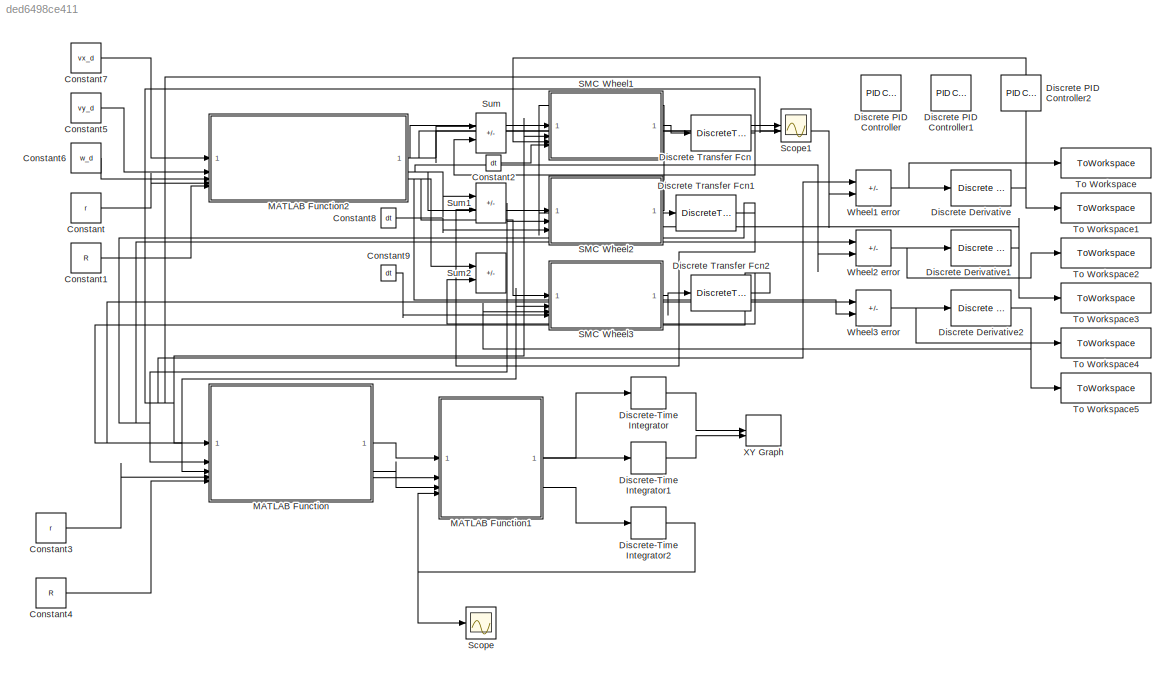
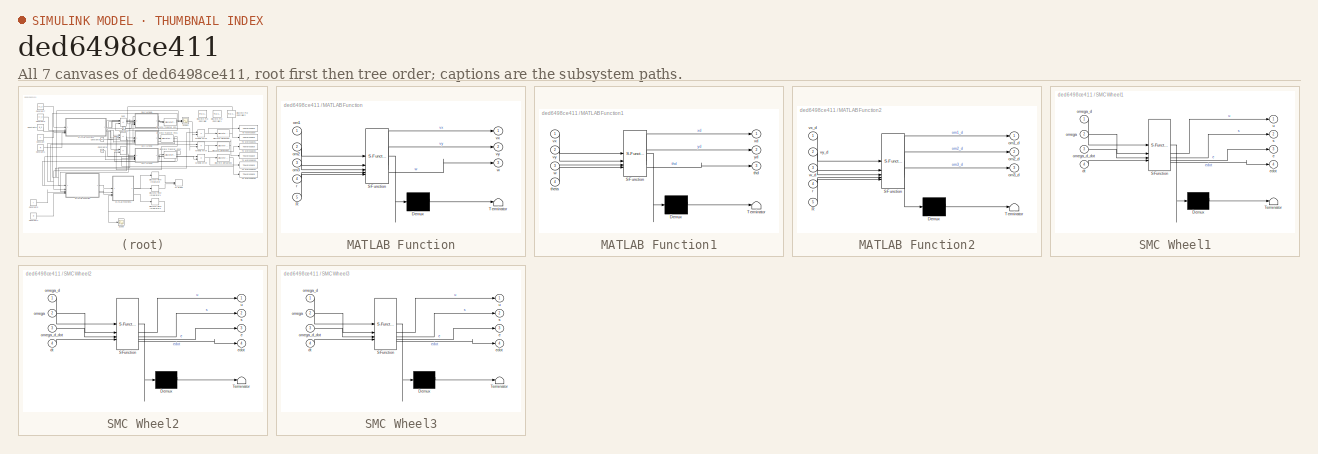
[diagram: thumbnail index - all 7 canvases of the model, root first then tree order]
MODEL slx_ded6498ce411
KIND model
CONFIG AbsTol = auto
CONFIG EnableMultiTasking = off
CONFIG FixedStep = dt
CONFIG MaxStep = auto
CONFIG MinStep = auto
CONFIG PreLoadFcn = run('params.m');\n
CONFIG RelTol = 1e-3
CONFIG SampleTimeConstraint = Unconstrained
CONFIG SolverName = FixedStepDiscrete
CONFIG StartTime = 0.0
CONFIG StopTime = 10
BLOCK [Constant] Constant
  Value = r
BLOCK [Constant] Constant1
  Value = R
BLOCK [Constant] Constant2
  Value = dt
BLOCK [Constant] Constant3
  Value = r
BLOCK [Constant] Constant4
  Value = R
BLOCK [Constant] Constant5
  Value = vy_d
BLOCK [Constant] Constant6
  Value = w_d
BLOCK [Constant] Constant7
  Value = vx_d
BLOCK [Constant] Constant8
  Value = dt
BLOCK [Constant] Constant9
  Value = dt
BLOCK [Reference] Discrete Derivative  REF=simulink/Discrete/Discrete Derivative
  SourceBlock = simulink/Discrete/Discrete Derivative
  SourceType = Discrete Derivative
BLOCK [Reference] Discrete Derivative1  REF=simulink/Discrete/Discrete Derivative
  SourceBlock = simulink/Discrete/Discrete Derivative
  SourceType = Discrete Derivative
BLOCK [Reference] Discrete Derivative2  REF=simulink/Discrete/Discrete Derivative
  SourceBlock = simulink/Discrete/Discrete Derivative
  SourceType = Discrete Derivative
BLOCK [Reference] Discrete PID Controller  REF=slpidlib/PID Controller
  Commented = on
  LibrarySourceBlock = simulink/Discrete/Discrete PID Controller
  SourceBlock = slpidlib/PID Controller
  SourceType = PID 1dof
BLOCK [Reference] Discrete PID Controller1  REF=slpidlib/PID Controller
  Commented = on
  LibrarySourceBlock = simulink/Discrete/Discrete PID Controller
  SourceBlock = slpidlib/PID Controller
  SourceType = PID 1dof
BLOCK [Reference] Discrete PID Controller2  REF=slpidlib/PID Controller
  Commented = on
  LibrarySourceBlock = simulink/Discrete/Discrete PID Controller
  SourceBlock = slpidlib/PID Controller
  SourceType = PID 1dof
BLOCK [DiscreteTransferFcn] Discrete Transfer Fcn
  CloseFcn = dspblkCoreblockFVToolHelper(gcbh,'close');
  CopyFcn = dspblkCoreblockFVToolHelper(gcbh,'copy');
  DeleteFcn = dspblkCoreblockFVToolHelper(gcbh,'close');
  Denominator = [ 1  -exp(-dt/tau1)     ]
  InputPortMap = u0
  LoadFcn = dspblkCoreblockFVToolHelper(gcbh,'load');
  ModelCloseFcn = dspblkCoreblockFVToolHelper(gcbh,'close');
  Numerator = [ K1*(1 - exp(-dt/tau1)) ]
  PostSaveFcn = dspblkCoreblockFVToolHelper(gcbh,'postsave');
  PreSaveFcn = dspblkCoreblockFVToolHelper(gcbh,'presave');
BLOCK [DiscreteTransferFcn] Discrete Transfer Fcn1
  CloseFcn = dspblkCoreblockFVToolHelper(gcbh,'close');
  CopyFcn = dspblkCoreblockFVToolHelper(gcbh,'copy');
  DeleteFcn = dspblkCoreblockFVToolHelper(gcbh,'close');
  Denominator = [ 1  -exp(-dt/tau2)     ]
  InputPortMap = u0
  LoadFcn = dspblkCoreblockFVToolHelper(gcbh,'load');
  ModelCloseFcn = dspblkCoreblockFVToolHelper(gcbh,'close');
  Numerator = [ K2*(1 - exp(-dt/tau2)) ]
  PostSaveFcn = dspblkCoreblockFVToolHelper(gcbh,'postsave');
  PreSaveFcn = dspblkCoreblockFVToolHelper(gcbh,'presave');
BLOCK [DiscreteTransferFcn] Discrete Transfer Fcn2
  CloseFcn = dspblkCoreblockFVToolHelper(gcbh,'close');
  CopyFcn = dspblkCoreblockFVToolHelper(gcbh,'copy');
  DeleteFcn = dspblkCoreblockFVToolHelper(gcbh,'close');
  Denominator = [ 1  -exp(-dt/tau3)     ]
  InputPortMap = u0
  LoadFcn = dspblkCoreblockFVToolHelper(gcbh,'load');
  ModelCloseFcn = dspblkCoreblockFVToolHelper(gcbh,'close');
  Numerator = [ K3*(1 - exp(-dt/tau3)) ]
  PostSaveFcn = dspblkCoreblockFVToolHelper(gcbh,'postsave');
  PreSaveFcn = dspblkCoreblockFVToolHelper(gcbh,'presave');
BLOCK [DiscreteIntegrator] Discrete-Time Integrator
  ICPrevOutput = DiscIntNeverNeededParam
  ICPrevScaledInput = DiscIntNeverNeededParam
  InitialCondition = x0
  InitialConditionSetting = Auto
  SampleTime = dt
BLOCK [DiscreteIntegrator] Discrete-Time Integrator1
  ICPrevOutput = DiscIntNeverNeededParam
  ICPrevScaledInput = DiscIntNeverNeededParam
  InitialCondition = y0
  InitialConditionSetting = Auto
  SampleTime = dt
BLOCK [DiscreteIntegrator] Discrete-Time Integrator2
  ICPrevOutput = DiscIntNeverNeededParam
  ICPrevScaledInput = DiscIntNeverNeededParam
  InitialCondition = th0
  InitialConditionSetting = Auto
  SampleTime = dt
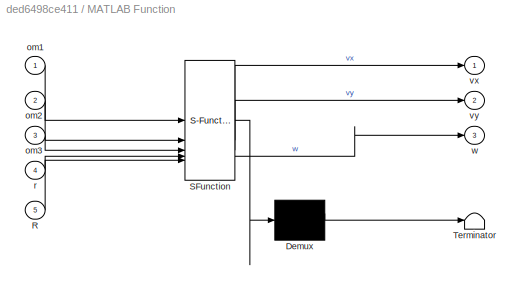
BLOCK [SubSystem] MATLAB Function
  ErrorFcn = Stateflow.Translate.translate
  PermitHierarchicalResolution = ExplicitOnly
  SFBlockType = MATLAB Function
  TreatAsAtomicUnit = on
BLOCK [Demux] MATLAB Function/ Demux 
  Outputs = 1
BLOCK [S-Function] MATLAB Function/ SFunction 
  EnableBusSupport = on
  FunctionName = sf_sfun
  PortCounts = [5 4]
  SFcnIsStateOwnerBlock = off
  SFunctionDeploymentMode = off
  Tag = Stateflow S-Function 2
BLOCK [Terminator] MATLAB Function/ Terminator 
BLOCK [Inport] MATLAB Function/R
  Port = 5
BLOCK [Inport] MATLAB Function/om1
BLOCK [Inport] MATLAB Function/om2
  Port = 2
BLOCK [Inport] MATLAB Function/om3
  Port = 3
BLOCK [Inport] MATLAB Function/r
  Port = 4
BLOCK [Outport] MATLAB Function/vx
BLOCK [Outport] MATLAB Function/vy
  Port = 2
BLOCK [Outport] MATLAB Function/w
  Port = 3
BLOCK [SubSystem] MATLAB Function1
  ErrorFcn = Stateflow.Translate.translate
  PermitHierarchicalResolution = ExplicitOnly
  SFBlockType = MATLAB Function
  TreatAsAtomicUnit = on
BLOCK [Demux] MATLAB Function1/ Demux 
  Outputs = 1
BLOCK [S-Function] MATLAB Function1/ SFunction 
  EnableBusSupport = on
  FunctionName = sf_sfun
  PortCounts = [4 4]
  SFcnIsStateOwnerBlock = off
  SFunctionDeploymentMode = off
  Tag = Stateflow S-Function 1
BLOCK [Terminator] MATLAB Function1/ Terminator 
BLOCK [Outport] MATLAB Function1/thd
  Port = 3
BLOCK [Inport] MATLAB Function1/theta
  Port = 4
BLOCK [Inport] MATLAB Function1/vx
BLOCK [Inport] MATLAB Function1/vy
  Port = 2
BLOCK [Inport] MATLAB Function1/w
  Port = 3
BLOCK [Outport] MATLAB Function1/xd
BLOCK [Outport] MATLAB Function1/yd
  Port = 2
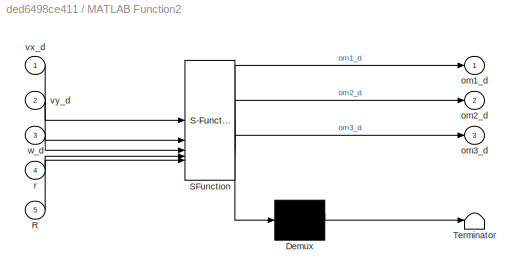
BLOCK [SubSystem] MATLAB Function2
  ErrorFcn = Stateflow.Translate.translate
  PermitHierarchicalResolution = ExplicitOnly
  SFBlockType = MATLAB Function
  TreatAsAtomicUnit = on
BLOCK [Demux] MATLAB Function2/ Demux 
  Outputs = 1
BLOCK [S-Function] MATLAB Function2/ SFunction 
  EnableBusSupport = on
  FunctionName = sf_sfun
  PortCounts = [5 4]
  SFcnIsStateOwnerBlock = off
  SFunctionDeploymentMode = off
  Tag = Stateflow S-Function 3
BLOCK [Terminator] MATLAB Function2/ Terminator 
BLOCK [Inport] MATLAB Function2/R
  Port = 5
BLOCK [Outport] MATLAB Function2/om1_d
BLOCK [Outport] MATLAB Function2/om2_d
  Port = 2
BLOCK [Outport] MATLAB Function2/om3_d
  Port = 3
BLOCK [Inport] MATLAB Function2/r
  Port = 4
BLOCK [Inport] MATLAB Function2/vx_d
BLOCK [Inport] MATLAB Function2/vy_d
  Port = 2
BLOCK [Inport] MATLAB Function2/w_d
  Port = 3
BLOCK [SubSystem] SMC Wheel1
  ErrorFcn = Stateflow.Translate.translate
  PermitHierarchicalResolution = ExplicitOnly
  SFBlockType = MATLAB Function
  TreatAsAtomicUnit = on
BLOCK [Demux] SMC Wheel1/ Demux 
  Outputs = 1
BLOCK [S-Function] SMC Wheel1/ SFunction 
  EnableBusSupport = on
  FunctionName = sf_sfun
  PortCounts = [4 5]
  SFcnIsStateOwnerBlock = off
  SFunctionDeploymentMode = off
  Tag = Stateflow S-Function 4
BLOCK [Terminator] SMC Wheel1/ Terminator 
BLOCK [Inport] SMC Wheel1/dt
  Port = 4
BLOCK [Outport] SMC Wheel1/e
  Port = 3
BLOCK [Outport] SMC Wheel1/edot
  Port = 4
BLOCK [Inport] SMC Wheel1/omega
  Port = 2
BLOCK [Inport] SMC Wheel1/omega_d
BLOCK [Inport] SMC Wheel1/omega_d_dot
  Port = 3
BLOCK [Outport] SMC Wheel1/s
  Port = 2
BLOCK [Outport] SMC Wheel1/u
BLOCK [SubSystem] SMC Wheel2
  ErrorFcn = Stateflow.Translate.translate
  PermitHierarchicalResolution = ExplicitOnly
  SFBlockType = MATLAB Function
  TreatAsAtomicUnit = on
BLOCK [Demux] SMC Wheel2/ Demux 
  Outputs = 1
BLOCK [S-Function] SMC Wheel2/ SFunction 
  EnableBusSupport = on
  FunctionName = sf_sfun
  PortCounts = [4 5]
  SFcnIsStateOwnerBlock = off
  SFunctionDeploymentMode = off
  Tag = Stateflow S-Function 5
BLOCK [Terminator] SMC Wheel2/ Terminator 
BLOCK [Inport] SMC Wheel2/dt
  Port = 4
BLOCK [Outport] SMC Wheel2/e
  Port = 3
BLOCK [Outport] SMC Wheel2/edot
  Port = 4
BLOCK [Inport] SMC Wheel2/omega
  Port = 2
BLOCK [Inport] SMC Wheel2/omega_d
BLOCK [Inport] SMC Wheel2/omega_d_dot
  Port = 3
BLOCK [Outport] SMC Wheel2/s
  Port = 2
BLOCK [Outport] SMC Wheel2/u
BLOCK [SubSystem] SMC Wheel3
  ErrorFcn = Stateflow.Translate.translate
  PermitHierarchicalResolution = ExplicitOnly
  SFBlockType = MATLAB Function
  TreatAsAtomicUnit = on
BLOCK [Demux] SMC Wheel3/ Demux 
  Outputs = 1
BLOCK [S-Function] SMC Wheel3/ SFunction 
  EnableBusSupport = on
  FunctionName = sf_sfun
  PortCounts = [4 5]
  SFcnIsStateOwnerBlock = off
  SFunctionDeploymentMode = off
  Tag = Stateflow S-Function 6
BLOCK [Terminator] SMC Wheel3/ Terminator 
BLOCK [Inport] SMC Wheel3/dt
  Port = 4
BLOCK [Outport] SMC Wheel3/e
  Port = 3
BLOCK [Outport] SMC Wheel3/edot
  Port = 4
BLOCK [Inport] SMC Wheel3/omega
  Port = 2
BLOCK [Inport] SMC Wheel3/omega_d
BLOCK [Inport] SMC Wheel3/omega_d_dot
  Port = 3
BLOCK [Outport] SMC Wheel3/s
  Port = 2
BLOCK [Outport] SMC Wheel3/u
BLOCK [Scope] Scope
  Floating = off
  NumInputPorts = 1
  ScopeSpecificationString = Simulink.scopes.TimeScopeBlockCfg('CurrentConfiguration', extmgr.ConfigurationSet(extmgr.Configuration('Core','General UI',true),extmgr.Configuration('Core','Source UI',true),extmgr.Configuration('Sources','WiredSimulink',true),extmgr.Configuration('Visuals','Time Domain',true,'SerializedDisplays',{struct('MinYLimReal','-0.23882','MaxYLimReal','2.14941','YLabelReal','','MinYLimMag','0.00000','MaxY...<+1500ch>
BLOCK [Scope] Scope1
  Floating = off
  NumInputPorts = 2
  ScopeSpecificationString = Simulink.scopes.TimeScopeBlockCfg('CurrentConfiguration', extmgr.ConfigurationSet(extmgr.Configuration('Core','General UI',true),extmgr.Configuration('Core','Source UI',true),extmgr.Configuration('Sources','WiredSimulink',true,'DataLoggingVariableName','ScopeData1'),extmgr.Configuration('Visuals','Time Domain',true,'SerializedDisplays',{struct('MinYLimReal','-0.08718','MaxYLimReal','0.78465','YLab...<+1560ch>
BLOCK [Sum] Sum
  IconShape = rectangular
  Inputs = |+-
BLOCK [Sum] Sum1
  IconShape = rectangular
  Inputs = |+-
BLOCK [Sum] Sum2
  IconShape = rectangular
  Inputs = |+-
BLOCK [ToWorkspace] To Workspace
  FixptAsFi = on
  MaxDataPoints = inf
  SampleTime = -1
  VariableName = e1
BLOCK [ToWorkspace] To Workspace1
  FixptAsFi = on
  MaxDataPoints = inf
  SampleTime = -1
  VariableName = e1dot
BLOCK [ToWorkspace] To Workspace2
  FixptAsFi = on
  MaxDataPoints = inf
  SampleTime = -1
  VariableName = e2
BLOCK [ToWorkspace] To Workspace3
  FixptAsFi = on
  MaxDataPoints = inf
  SampleTime = -1
  VariableName = e2dot
BLOCK [ToWorkspace] To Workspace4
  FixptAsFi = on
  MaxDataPoints = inf
  SampleTime = -1
  VariableName = e3
BLOCK [ToWorkspace] To Workspace5
  FixptAsFi = on
  MaxDataPoints = inf
  SampleTime = -1
  VariableName = e3dot
BLOCK [Sum] Wheel1 error
  IconShape = rectangular
  Inputs = |+-
BLOCK [Sum] Wheel2 error
  IconShape = rectangular
  Inputs = |+-
BLOCK [Sum] Wheel3 error
  IconShape = rectangular
  Inputs = |+-
BLOCK [Record] XY Graph
  CompatibilityTag = XY
  FileSettingsInternal = {"entries":[{"content":{"excelSettings":{"content":{},"type":"Streamout.ExcelSettings"}},"type":"Streamout.FileSettingStorage","uuid":""}],"packageUris":["http:\/\/schema.mathworks.com\/mf0\/streamout_blocks\/R2020a"],"version":"1.0"}
  Layout = [1 1]
  SignalsInternal = {"entries":[{"content":{"signals":[{"content":{"blockPath":[],"dimensions":[1],"domain":"","lineColor":"#a2142f","plots":[ 1 ],"port":1,"sid":[""],"signalID":1,"signalName":"Discrete-Time\nIntegrator"},"type":"RecordBlkView.Signal","uuid":""},{"content":{"blockPath":[],"dimensions":[1],"domain":"","lineColor":"#139fff","plots":[ 1 ],"port":2,"sid":[""],"signalID":2,"signalName":"Discrete-Time\nInt...<+197ch>
  VisualizationBindings = {"xyplotplugin":{"info":[{"series":[{"bindingParametersList":[{"parameter":"X-Axis","signalID":1,"signalName":"Discrete-Time\nIntegrator"},{"parameter":"Y-Axis","signalID":2,"signalName":"Discrete-Time\nIntegrator1"}],"seriesID":0}],"subplotID":1}]}}
LINE Constant1:1 -> MATLAB Function2:5
LINE Constant2:1 -> SMC Wheel1:4
LINE Constant3:1 -> MATLAB Function:4
LINE Constant4:1 -> MATLAB Function:5
LINE Constant5:1 -> MATLAB Function2:2
LINE Constant6:1 -> MATLAB Function2:3
LINE Constant7:1 -> MATLAB Function2:1
LINE Constant8:1 -> SMC Wheel2:4
LINE Constant9:1 -> SMC Wheel3:4
LINE Constant:1 -> MATLAB Function2:4
NET Discrete Derivative1:1 -> SMC Wheel2:3, To Workspace3:1
NET Discrete Derivative2:1 -> SMC Wheel3:3, To Workspace5:1
NET Discrete Derivative:1 -> SMC Wheel1:3, To Workspace1:1
NET Discrete Transfer Fcn1:1 -> MATLAB Function:2, SMC Wheel2:2, Sum1:2, Wheel2 error:1
NET Discrete Transfer Fcn2:1 -> MATLAB Function:3, SMC Wheel3:2, Sum2:2, Wheel3 error:1
NET Discrete Transfer Fcn:1 -> MATLAB Function:1, SMC Wheel1:2, Scope1:2, Sum:2, Wheel1 error:1
LINE Discrete-Time Integrator1:1 -> XY Graph:2
NET Discrete-Time Integrator2:1 -> MATLAB Function1:4, Scope:1
LINE Discrete-Time Integrator:1 -> XY Graph:1
LINE MATLAB Function1:1 -> Discrete-Time Integrator:1
LINE MATLAB Function1:2 -> Discrete-Time Integrator1:1
LINE MATLAB Function1:3 -> Discrete-Time Integrator2:1
NET MATLAB Function2:1 -> SMC Wheel1:1, Scope1:1, Sum:1, Wheel1 error:2
NET MATLAB Function2:2 -> SMC Wheel2:1, Sum1:1, Wheel2 error:2
NET MATLAB Function2:3 -> SMC Wheel3:1, Sum2:1, Wheel3 error:2
LINE MATLAB Function:1 -> MATLAB Function1:1
LINE MATLAB Function:2 -> MATLAB Function1:2
LINE MATLAB Function:3 -> MATLAB Function1:3
LINE SMC Wheel1:1 -> Discrete Transfer Fcn:1
LINE SMC Wheel2:1 -> Discrete Transfer Fcn1:1
LINE SMC Wheel3:1 -> Discrete Transfer Fcn2:1
NET Wheel1 error:1 -> Discrete Derivative:1, To Workspace:1
NET Wheel2 error:1 -> Discrete Derivative1:1, To Workspace2:1
NET Wheel3 error:1 -> Discrete Derivative2:1, To Workspace4:1
note: NET lines group one-source signal fan-out (src -> all destinations, sorted); 1:1 wires keep LINE
CHART MATLAB Function1 states=1 transitions=1
  STATE_LABEL 'eML_blk_kernel()'
  STATE_LABEL 'SCRIPT:\nfunction [xd, yd, thd] = body_to_world(vx, vy, w, theta)\nxd  =  vx*cos(theta) - vy*sin(theta);\nyd  =  vx*sin(theta) + vy*cos(theta);\nthd =  w;\nend'
CHART MATLAB Function states=1 transitions=1
  STATE_LABEL 'eML_blk_kernel()'
  STATE_LABEL 'SCRIPT:\nfunction [vx, vy, w] = wheel_to_body(om1, om2, om3, r, R)\nvx = (r/sqrt(3))*(-om2 + om3);\nvy = (r/3)*(2*om1 - om2 - om3);\nw  = (r/(3*R))*(om1 + om2 + om3);\nend\n\n'
CHART MATLAB Function2 states=1 transitions=1
  STATE_LABEL 'eML_blk_kernel()'
  STATE_LABEL 'SCRIPT:\nfunction [om1_d, om2_d, om3_d] = body_to_wheels(vx_d, vy_d, w_d, r, R)\n%#codegen\n% A = [ -sinφ  cosφ  R ] rows with φ1=0, φ2=120°, φ3=240°\n% Closed-form for 120° geometry:\nom1_d = (vy_d + R*w_d) / r;\nom2_d = ( -sqrt(3)/2*vx_d - 1/2*vy_d + R*w_d ) / r;\nom3_d = (  sqrt(3)/2*vx_d - 1/2*vy_d + R*w_d ) / r;\nend\n'
CHART SMC Wheel1 states=1 transitions=1
  STATE_LABEL 'eML_blk_kernel()'
  STATE_LABEL 'SCRIPT:\nfunction [u, s, e, edot] = SMC_Controller(omega_d, omega, omega_d_dot, dt)\n%#codegen\n\n% outputs to initialize\nu    = 0.0;\ns    = 0.0;\ne    = 0.0;\nedot = 0.0;\n\n%  gains (tune) \nc   = 5.0;     % sliding surface gain\nk   = 2.0;     % switching gain\nphi = 0.05;    % smoothing for tanh to avoid chattering\n\n% discrete derivative of omega (using dt) \npersistent omega_prev\nif isempty(omega_prev)\n ...<+304ch>'
CHART SMC Wheel2 states=1 transitions=1
  STATE_LABEL 'eML_blk_kernel()'
  STATE_LABEL 'SCRIPT:\nfunction [u, s, e, edot] = SMC_Controller(omega_d, omega, omega_d_dot, dt)\n%#codegen\n\n% ---- outputs must be scalars (initialize) ----\nu    = 0.0;\ns    = 0.0;\ne    = 0.0;\nedot = 0.0;\n\n% ---- gains (tune) ----\nc   = 5.0;     % sliding surface gain\nk   = 2.0;     % switching gain\nphi = 0.05;    % smoothing for tanh to avoid chattering\n\n% ---- discrete derivative of omega (using dt) ----\npers...<+346ch>'
CHART SMC Wheel3 states=1 transitions=1
  STATE_LABEL 'eML_blk_kernel()'
  STATE_LABEL 'SCRIPT:\nfunction [u, s, e, edot] = SMC_Controller(omega_d, omega, omega_d_dot, dt)\n%#codegen\n\n% ---- outputs must be scalars (initialize) ----\nu    = 0.0;\ns    = 0.0;\ne    = 0.0;\nedot = 0.0;\n\n% ---- gains (tune) ----\nc   = 5.0;     % sliding surface gain\nk   = 2.0;     % switching gain\nphi = 0.05;    % smoothing for tanh to avoid chattering\n\n% ---- discrete derivative of omega (using dt) ----\npers...<+346ch>'
CHART  states=0 transitions=0
CHART  states=0 transitions=0
CHART  states=0 transitions=0
CHART  states=0 transitions=0
CHART  states=0 transitions=0
CHART  states=0 transitions=0
